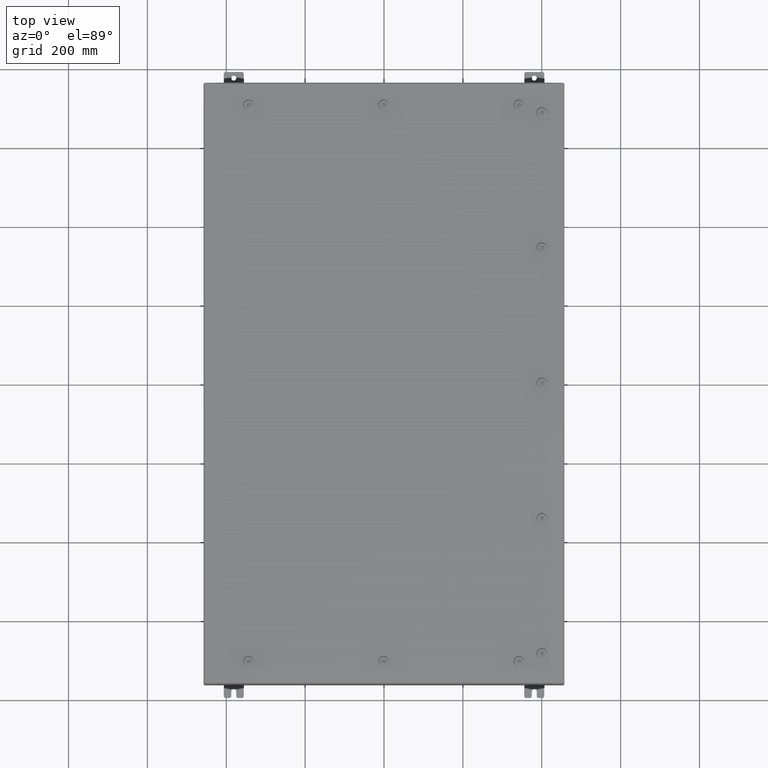
[diagram: clean part render]
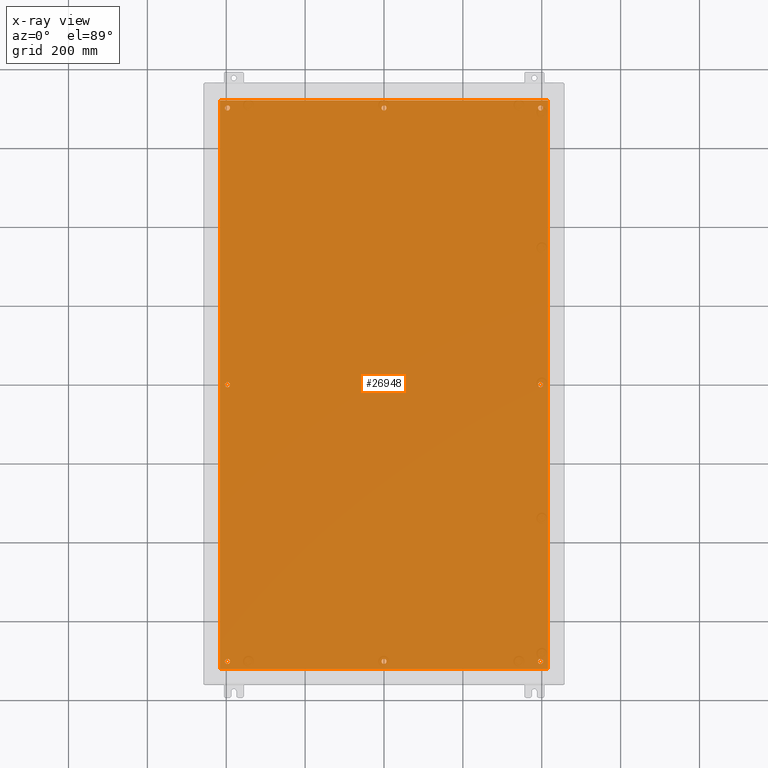
[diagram: x-ray — body ghosted, one internal face saturated and labeled with its STEP entity id]
A machine part, top view, then the same camera in x-ray: the body is ghosted and one INTERNAL B-rep face — a face not visible from any outside direction — is saturated and labeled: STEP entity #26948.
In plain terms, the highlighted planar face has unit normal (0, 0, -1).
Its self-contained STEP definition (entity closure, byte-faithful):
#300 = ORIENTED_EDGE ( 'NONE', *, *, #44027, .T. ) ;
#439 = CARTESIAN_POINT ( 'NONE',  ( 15.37500000000000500, 3.027752532102206500E-015, -0.1039999999999999800 ) ) ;
#689 = ORIENTED_EDGE ( 'NONE', *, *, #20920, .T. ) ;
#917 = CARTESIAN_POINT ( 'NONE',  ( 15.87500000000000700, -27.62500000000000000, -0.1039999999999999800 ) ) ;
#1133 = CIRCLE ( 'NONE', #5790, 0.2499999999999998600 ) ;
#1237 = CARTESIAN_POINT ( 'NONE',  ( -15.62500000000000500, -8.298848852119578500E-016, -0.1039999999999999800 ) ) ;
#1866 = DIRECTION ( 'NONE',  ( -1.000000000000000000, 0.0000000000000000000, 0.0000000000000000000 ) ) ;
#2197 = CARTESIAN_POINT ( 'NONE',  ( 0.0000000000000000000, -27.62500000000000000, -0.1039999999999999800 ) ) ;
#2352 = CARTESIAN_POINT ( 'NONE',  ( 0.0000000000000000000, 27.62500000000000000, -0.1039999999999999800 ) ) ;
#2554 = VERTEX_POINT ( 'NONE', #30130 ) ;
#2770 = CARTESIAN_POINT ( 'NONE',  ( 15.62500000000000900, -27.62500000000000000, -0.1039999999999999800 ) ) ;
#3044 = CARTESIAN_POINT ( 'NONE',  ( 0.0000000000000000000, -27.62500000000000000, -0.1039999999999999800 ) ) ;
#3155 = VERTEX_POINT ( 'NONE', #20566 ) ;
#3208 = DIRECTION ( 'NONE',  ( -0.0000000000000000000, -0.0000000000000000000, 1.000000000000000000 ) ) ;
#3332 = EDGE_LOOP ( 'NONE', ( #37288, #22364, #35019, #28794 ) ) ;
#3540 = LINE ( 'NONE', #23162, #58661 ) ;
#3885 = VERTEX_POINT ( 'NONE', #28375 ) ;
#5163 = CIRCLE ( 'NONE', #9533, 0.2499999999999987000 ) ;
#5307 = EDGE_CURVE ( 'NONE', #42501, #2554, #61563, .T. ) ;
#5759 = CARTESIAN_POINT ( 'NONE',  ( 16.38299999999999900, -28.38300000000000600, -0.1040000000000009100 ) ) ;
#5790 = AXIS2_PLACEMENT_3D ( 'NONE', #2352, #39743, #7737 ) ;
#5893 = CIRCLE ( 'NONE', #60826, 0.2499999999999987000 ) ;
#6374 = DIRECTION ( 'NONE',  ( -0.0000000000000000000, -0.0000000000000000000, 1.000000000000000000 ) ) ;
#6660 = DIRECTION ( 'NONE',  ( -1.000000000000000000, 0.0000000000000000000, 0.0000000000000000000 ) ) ;
#6823 = VERTEX_POINT ( 'NONE', #64436 ) ;
#7239 = EDGE_CURVE ( 'NONE', #9062, #25086, #61422, .T. ) ;
#7601 = DIRECTION ( 'NONE',  ( -1.000000000000000000, 0.0000000000000000000, 0.0000000000000000000 ) ) ;
#7737 = DIRECTION ( 'NONE',  ( -1.000000000000000000, 0.0000000000000000000, 0.0000000000000000000 ) ) ;
#8127 = DIRECTION ( 'NONE',  ( -1.000000000000000000, 0.0000000000000000000, 0.0000000000000000000 ) ) ;
#8242 = CARTESIAN_POINT ( 'NONE',  ( -16.38299999999999900, -28.38300000000000600, -0.1040000000000009400 ) ) ;
#8295 = VERTEX_POINT ( 'NONE', #11620 ) ;
#8342 = FACE_BOUND ( 'NONE', #48966, .T. ) ;
#8431 = DIRECTION ( 'NONE',  ( -1.000000000000000000, 0.0000000000000000000, 0.0000000000000000000 ) ) ;
#8435 = ORIENTED_EDGE ( 'NONE', *, *, #12986, .T. ) ;
#9062 = VERTEX_POINT ( 'NONE', #44925 ) ;
#9465 = ORIENTED_EDGE ( 'NONE', *, *, #31574, .T. ) ;
#9533 = AXIS2_PLACEMENT_3D ( 'NONE', #18236, #55654, #23649 ) ;
#9646 = AXIS2_PLACEMENT_3D ( 'NONE', #12980, #50356, #18320 ) ;
#9915 = CARTESIAN_POINT ( 'NONE',  ( -15.62500000000001100, 27.62500000000000000, -0.1039999999999999800 ) ) ;
#10721 = VERTEX_POINT ( 'NONE', #56695 ) ;
#10765 = VERTEX_POINT ( 'NONE', #62114 ) ;
#11000 = DIRECTION ( 'NONE',  ( -0.0000000000000000000, -0.0000000000000000000, 1.000000000000000000 ) ) ;
#11620 = CARTESIAN_POINT ( 'NONE',  ( 16.38299999999999900, 28.38299999999998800, -0.1040000000000009100 ) ) ;
#11723 = CARTESIAN_POINT ( 'NONE',  ( 15.87500000000000700, 27.62500000000000000, -0.1039999999999999800 ) ) ;
#11804 = EDGE_CURVE ( 'NONE', #35053, #3885, #5163, .T. ) ;
#11993 = VERTEX_POINT ( 'NONE', #25034 ) ;
#12764 = CARTESIAN_POINT ( 'NONE',  ( -15.37500000000000500, -8.298848852119578500E-016, -0.1039999999999999800 ) ) ;
#12980 = CARTESIAN_POINT ( 'NONE',  ( 0.0000000000000000000, 0.0000000000000000000, -0.1039999999999999800 ) ) ;
#12986 = EDGE_CURVE ( 'NONE', #64983, #32071, #42698, .T. ) ;
#13275 = VERTEX_POINT ( 'NONE', #49794 ) ;
#13634 = VERTEX_POINT ( 'NONE', #35808 ) ;
#13721 = ORIENTED_EDGE ( 'NONE', *, *, #5307, .T. ) ;
#14727 = DIRECTION ( 'NONE',  ( 1.000000000000000000, -0.0000000000000000000, -0.0000000000000000000 ) ) ;
#14954 = CARTESIAN_POINT ( 'NONE',  ( -16.50000000000000000, -28.38300000000000600, -0.1040000000000009400 ) ) ;
#15253 = DIRECTION ( 'NONE',  ( -1.000000000000000000, 0.0000000000000000000, 0.0000000000000000000 ) ) ;
#16317 = DIRECTION ( 'NONE',  ( -0.0000000000000000000, -0.0000000000000000000, 1.000000000000000000 ) ) ;
#17002 = CIRCLE ( 'NONE', #66308, 0.2499999999999987000 ) ;
#17149 = AXIS2_PLACEMENT_3D ( 'NONE', #48342, #16317, #53713 ) ;
#18236 = CARTESIAN_POINT ( 'NONE',  ( 15.62500000000000900, -27.62500000000000000, -0.1039999999999999800 ) ) ;
#18320 = DIRECTION ( 'NONE',  ( -1.000000000000000000, 0.0000000000000000000, -0.0000000000000000000 ) ) ;
#18536 = EDGE_CURVE ( 'NONE', #31590, #32420, #45352, .T. ) ;
#18829 = DIRECTION ( 'NONE',  ( -0.0000000000000000000, -0.0000000000000000000, 1.000000000000000000 ) ) ;
#19107 = EDGE_CURVE ( 'NONE', #25086, #9062, #28568, .T. ) ;
#19483 = CARTESIAN_POINT ( 'NONE',  ( -16.38299999999999900, 28.38299999999998800, -0.1040000000000009100 ) ) ;
#20566 = CARTESIAN_POINT ( 'NONE',  ( -15.37500000000000900, -27.62500000000000000, -0.1039999999999999800 ) ) ;
#20920 = EDGE_CURVE ( 'NONE', #11993, #13275, #58542, .T. ) ;
#21316 = AXIS2_PLACEMENT_3D ( 'NONE', #9915, #47262, #15253 ) ;
#22364 = ORIENTED_EDGE ( 'NONE', *, *, #18536, .F. ) ;
#22436 = FACE_BOUND ( 'NONE', #25146, .T. ) ;
#23162 = CARTESIAN_POINT ( 'NONE',  ( 16.38299999999999900, -28.38300000000000600, -0.1040000000000009100 ) ) ;
#23649 = DIRECTION ( 'NONE',  ( -1.000000000000000000, 0.0000000000000000000, 0.0000000000000000000 ) ) ;
#23669 = EDGE_CURVE ( 'NONE', #2554, #42501, #55879, .T. ) ;
#24789 = AXIS2_PLACEMENT_3D ( 'NONE', #3044, #40428, #8431 ) ;
#25034 = CARTESIAN_POINT ( 'NONE',  ( -0.2499999999999998600, 27.62500000000000000, -0.1039999999999999800 ) ) ;
#25086 = VERTEX_POINT ( 'NONE', #439 ) ;
#25146 = EDGE_LOOP ( 'NONE', ( #300, #68294 ) ) ;
#25165 = AXIS2_PLACEMENT_3D ( 'NONE', #50869, #18829, #56261 ) ;
#25851 = VERTEX_POINT ( 'NONE', #5759 ) ;
#26948 = ADVANCED_FACE ( 'NONE', ( #50919, #40112, #52599, #22436, #8342, #68515, #63503, #49213, #35078 ), #39664, .T. ) ;
#27578 = DIRECTION ( 'NONE',  ( -0.0000000000000000000, -0.0000000000000000000, 1.000000000000000000 ) ) ;
#28375 = CARTESIAN_POINT ( 'NONE',  ( 15.37500000000000900, -27.62500000000000000, -0.1039999999999999800 ) ) ;
#28538 = CARTESIAN_POINT ( 'NONE',  ( 15.62500000000000500, 2.997136362123522700E-015, -0.1039999999999999800 ) ) ;
#28568 = CIRCLE ( 'NONE', #34010, 0.2500000000000008900 ) ;
#28794 = ORIENTED_EDGE ( 'NONE', *, *, #41480, .F. ) ;
#28985 = EDGE_CURVE ( 'NONE', #10721, #44597, #47415, .T. ) ;
#30094 = CARTESIAN_POINT ( 'NONE',  ( -15.62500000000000900, -27.62500000000000000, -0.1039999999999999800 ) ) ;
#30130 = CARTESIAN_POINT ( 'NONE',  ( -15.37500000000000900, 27.62500000000000000, -0.1039999999999999800 ) ) ;
#31135 = VECTOR ( 'NONE', #67671, 39.37007874015748100 ) ;
#31574 = EDGE_CURVE ( 'NONE', #10765, #6823, #47684, .T. ) ;
#31590 = VERTEX_POINT ( 'NONE', #60841 ) ;
#32048 = EDGE_CURVE ( 'NONE', #32071, #64983, #46831, .T. ) ;
#32051 = EDGE_CURVE ( 'NONE', #3155, #13634, #5893, .T. ) ;
#32071 = VERTEX_POINT ( 'NONE', #11723 ) ;
#32420 = VERTEX_POINT ( 'NONE', #8242 ) ;
#32473 = EDGE_LOOP ( 'NONE', ( #39197, #50986 ) ) ;
#33399 = ORIENTED_EDGE ( 'NONE', *, *, #54775, .T. ) ;
#33884 = DIRECTION ( 'NONE',  ( -0.0000000000000000000, -0.0000000000000000000, 1.000000000000000000 ) ) ;
#33949 = DIRECTION ( 'NONE',  ( -1.000000000000000000, 0.0000000000000000000, 0.0000000000000000000 ) ) ;
#34010 = AXIS2_PLACEMENT_3D ( 'NONE', #28538, #65950, #33949 ) ;
#35019 = ORIENTED_EDGE ( 'NONE', *, *, #53137, .F. ) ;
#35053 = VERTEX_POINT ( 'NONE', #917 ) ;
#35078 = FACE_OUTER_BOUND ( 'NONE', #3332, .T. ) ;
#35215 = CARTESIAN_POINT ( 'NONE',  ( 15.62500000000000500, 2.997136362123522700E-015, -0.1039999999999999800 ) ) ;
#35491 = DIRECTION ( 'NONE',  ( -1.000000000000000000, 0.0000000000000000000, 0.0000000000000000000 ) ) ;
#35665 = AXIS2_PLACEMENT_3D ( 'NONE', #1237, #38637, #6660 ) ;
#35808 = CARTESIAN_POINT ( 'NONE',  ( -15.87500000000000700, -27.62500000000000000, -0.1039999999999999800 ) ) ;
#36607 = EDGE_LOOP ( 'NONE', ( #56345, #33399 ) ) ;
#36656 = LINE ( 'NONE', #14954, #50864 ) ;
#37288 = ORIENTED_EDGE ( 'NONE', *, *, #67744, .F. ) ;
#38311 = VECTOR ( 'NONE', #47986, 39.37007874015748100 ) ;
#38313 = EDGE_CURVE ( 'NONE', #6823, #10765, #63930, .T. ) ;
#38360 = CARTESIAN_POINT ( 'NONE',  ( -15.62500000000000900, -27.62500000000000000, -0.1039999999999999800 ) ) ;
#38637 = DIRECTION ( 'NONE',  ( -0.0000000000000000000, -0.0000000000000000000, 1.000000000000000000 ) ) ;
#39197 = ORIENTED_EDGE ( 'NONE', *, *, #7239, .T. ) ;
#39385 = AXIS2_PLACEMENT_3D ( 'NONE', #42998, #11000, #48349 ) ;
#39596 = DIRECTION ( 'NONE',  ( -0.0000000000000000000, -0.0000000000000000000, 1.000000000000000000 ) ) ;
#39664 = PLANE ( 'NONE',  #9646 ) ;
#39743 = DIRECTION ( 'NONE',  ( -0.0000000000000000000, -0.0000000000000000000, 1.000000000000000000 ) ) ;
#40112 = FACE_BOUND ( 'NONE', #49167, .T. ) ;
#40145 = DIRECTION ( 'NONE',  ( -0.0000000000000000000, -0.0000000000000000000, 1.000000000000000000 ) ) ;
#40428 = DIRECTION ( 'NONE',  ( -0.0000000000000000000, -0.0000000000000000000, 1.000000000000000000 ) ) ;
#40587 = DIRECTION ( 'NONE',  ( -1.000000000000000000, 0.0000000000000000000, 0.0000000000000000000 ) ) ;
#41480 = EDGE_CURVE ( 'NONE', #25851, #8295, #3540, .T. ) ;
#41689 = AXIS2_PLACEMENT_3D ( 'NONE', #65888, #33884, #1866 ) ;
#41882 = ORIENTED_EDGE ( 'NONE', *, *, #32048, .T. ) ;
#42501 = VERTEX_POINT ( 'NONE', #65205 ) ;
#42698 = CIRCLE ( 'NONE', #17149, 0.2499999999999987000 ) ;
#42998 = CARTESIAN_POINT ( 'NONE',  ( -15.62500000000000500, -8.298848852119578500E-016, -0.1039999999999999800 ) ) ;
#43712 = DIRECTION ( 'NONE',  ( -1.000000000000000000, 0.0000000000000000000, 0.0000000000000000000 ) ) ;
#44027 = EDGE_CURVE ( 'NONE', #44597, #10721, #48784, .T. ) ;
#44228 = EDGE_CURVE ( 'NONE', #13275, #11993, #1133, .T. ) ;
#44597 = VERTEX_POINT ( 'NONE', #12764 ) ;
#44925 = CARTESIAN_POINT ( 'NONE',  ( 15.87500000000000700, 2.997136362123522700E-015, -0.1039999999999999800 ) ) ;
#45352 = LINE ( 'NONE', #19483, #31135 ) ;
#45593 = EDGE_CURVE ( 'NONE', #13634, #3155, #17002, .T. ) ;
#45792 = ORIENTED_EDGE ( 'NONE', *, *, #45593, .T. ) ;
#46021 = EDGE_LOOP ( 'NONE', ( #64448, #9465 ) ) ;
#46831 = CIRCLE ( 'NONE', #68017, 0.2499999999999987000 ) ;
#47262 = DIRECTION ( 'NONE',  ( -0.0000000000000000000, -0.0000000000000000000, 1.000000000000000000 ) ) ;
#47415 = CIRCLE ( 'NONE', #35665, 0.2500000000000008900 ) ;
#47684 = CIRCLE ( 'NONE', #47773, 0.2500000000000011700 ) ;
#47773 = AXIS2_PLACEMENT_3D ( 'NONE', #2197, #39596, #7601 ) ;
#47986 = DIRECTION ( 'NONE',  ( -1.000000000000000000, -0.0000000000000000000, -0.0000000000000000000 ) ) ;
#48342 = CARTESIAN_POINT ( 'NONE',  ( 15.62500000000000900, 27.62500000000000000, -0.1039999999999999800 ) ) ;
#48349 = DIRECTION ( 'NONE',  ( -1.000000000000000000, 0.0000000000000000000, 0.0000000000000000000 ) ) ;
#48784 = CIRCLE ( 'NONE', #39385, 0.2500000000000008900 ) ;
#48966 = EDGE_LOOP ( 'NONE', ( #68283, #45792 ) ) ;
#49031 = EDGE_LOOP ( 'NONE', ( #41882, #8435 ) ) ;
#49167 = EDGE_LOOP ( 'NONE', ( #61268, #689 ) ) ;
#49213 = FACE_BOUND ( 'NONE', #68475, .T. ) ;
#49794 = CARTESIAN_POINT ( 'NONE',  ( 0.2499999999999998600, 27.62500000000000000, -0.1039999999999999800 ) ) ;
#50356 = DIRECTION ( 'NONE',  ( 0.0000000000000000000, 0.0000000000000000000, -1.000000000000000000 ) ) ;
#50864 = VECTOR ( 'NONE', #14727, 39.37007874015748100 ) ;
#50869 = CARTESIAN_POINT ( 'NONE',  ( -15.62500000000001100, 27.62500000000000000, -0.1039999999999999800 ) ) ;
#50919 = FACE_BOUND ( 'NONE', #46021, .T. ) ;
#50986 = ORIENTED_EDGE ( 'NONE', *, *, #19107, .T. ) ;
#52519 = LINE ( 'NONE', #63949, #38311 ) ;
#52599 = FACE_BOUND ( 'NONE', #32473, .T. ) ;
#52900 = ORIENTED_EDGE ( 'NONE', *, *, #23669, .T. ) ;
#53137 = EDGE_CURVE ( 'NONE', #8295, #31590, #52519, .T. ) ;
#53713 = DIRECTION ( 'NONE',  ( -1.000000000000000000, 0.0000000000000000000, 0.0000000000000000000 ) ) ;
#54775 = EDGE_CURVE ( 'NONE', #3885, #35053, #60054, .T. ) ;
#55654 = DIRECTION ( 'NONE',  ( -0.0000000000000000000, -0.0000000000000000000, 1.000000000000000000 ) ) ;
#55879 = CIRCLE ( 'NONE', #25165, 0.2500000000000008900 ) ;
#56261 = DIRECTION ( 'NONE',  ( -1.000000000000000000, 0.0000000000000000000, 0.0000000000000000000 ) ) ;
#56345 = ORIENTED_EDGE ( 'NONE', *, *, #11804, .T. ) ;
#56695 = CARTESIAN_POINT ( 'NONE',  ( -15.87500000000000700, -7.992687152332741600E-016, -0.1039999999999999800 ) ) ;
#58542 = CIRCLE ( 'NONE', #41689, 0.2499999999999998600 ) ;
#58661 = VECTOR ( 'NONE', #60584, 39.37007874015748100 ) ;
#59599 = CARTESIAN_POINT ( 'NONE',  ( 15.37500000000000900, 27.62500000000000000, -0.1039999999999999800 ) ) ;
#59622 = CARTESIAN_POINT ( 'NONE',  ( 15.62500000000000900, 27.62500000000000000, -0.1039999999999999800 ) ) ;
#60054 = CIRCLE ( 'NONE', #63279, 0.2499999999999987000 ) ;
#60584 = DIRECTION ( 'NONE',  ( 0.0000000000000000000, 1.000000000000000000, 0.0000000000000000000 ) ) ;
#60826 = AXIS2_PLACEMENT_3D ( 'NONE', #38360, #6374, #43712 ) ;
#60841 = CARTESIAN_POINT ( 'NONE',  ( -16.38299999999999900, 28.38299999999998800, -0.1040000000000009100 ) ) ;
#61268 = ORIENTED_EDGE ( 'NONE', *, *, #44228, .T. ) ;
#61422 = CIRCLE ( 'NONE', #67201, 0.2500000000000008900 ) ;
#61563 = CIRCLE ( 'NONE', #21316, 0.2500000000000008900 ) ;
#62114 = CARTESIAN_POINT ( 'NONE',  ( -0.2500000000000011700, -27.62500000000000000, -0.1039999999999999800 ) ) ;
#63279 = AXIS2_PLACEMENT_3D ( 'NONE', #2770, #40145, #8127 ) ;
#63503 = FACE_BOUND ( 'NONE', #49031, .T. ) ;
#63930 = CIRCLE ( 'NONE', #24789, 0.2500000000000011700 ) ;
#63949 = CARTESIAN_POINT ( 'NONE',  ( 16.50000000000000000, 28.38299999999999600, -0.1040000000000009400 ) ) ;
#64436 = CARTESIAN_POINT ( 'NONE',  ( 0.2500000000000011700, -27.62500000000000000, -0.1039999999999999800 ) ) ;
#64448 = ORIENTED_EDGE ( 'NONE', *, *, #38313, .T. ) ;
#64983 = VERTEX_POINT ( 'NONE', #59599 ) ;
#65009 = DIRECTION ( 'NONE',  ( -1.000000000000000000, 0.0000000000000000000, 0.0000000000000000000 ) ) ;
#65205 = CARTESIAN_POINT ( 'NONE',  ( -15.87500000000001100, 27.62500000000000000, -0.1039999999999999800 ) ) ;
#65888 = CARTESIAN_POINT ( 'NONE',  ( 0.0000000000000000000, 27.62500000000000000, -0.1039999999999999800 ) ) ;
#65950 = DIRECTION ( 'NONE',  ( -0.0000000000000000000, -0.0000000000000000000, 1.000000000000000000 ) ) ;
#66308 = AXIS2_PLACEMENT_3D ( 'NONE', #30094, #67508, #35491 ) ;
#67201 = AXIS2_PLACEMENT_3D ( 'NONE', #35215, #3208, #40587 ) ;
#67508 = DIRECTION ( 'NONE',  ( -0.0000000000000000000, -0.0000000000000000000, 1.000000000000000000 ) ) ;
#67671 = DIRECTION ( 'NONE',  ( 0.0000000000000000000, -1.000000000000000000, 0.0000000000000000000 ) ) ;
#67744 = EDGE_CURVE ( 'NONE', #32420, #25851, #36656, .T. ) ;
#68017 = AXIS2_PLACEMENT_3D ( 'NONE', #59622, #27578, #65009 ) ;
#68283 = ORIENTED_EDGE ( 'NONE', *, *, #32051, .T. ) ;
#68294 = ORIENTED_EDGE ( 'NONE', *, *, #28985, .T. ) ;
#68475 = EDGE_LOOP ( 'NONE', ( #52900, #13721 ) ) ;
#68515 = FACE_BOUND ( 'NONE', #36607, .T. ) ;